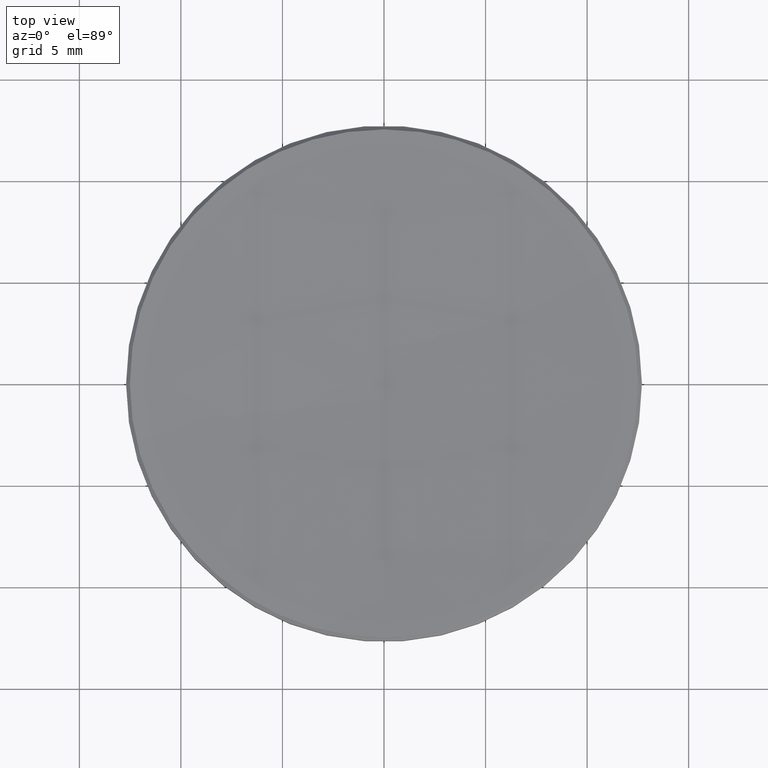
[diagram: clean part render]
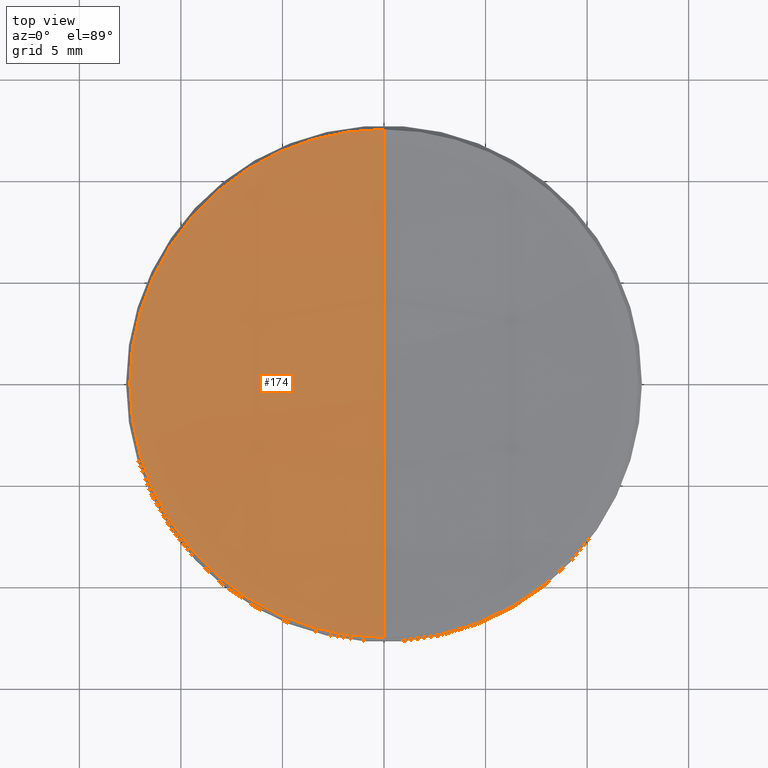
[diagram: same view with one face highlighted and labeled with its STEP entity id]
A machine part, top view. The second image highlights one B-rep face of the part: STEP entity #174.
In plain terms, the highlighted spherical surface has radius 182.19 mm.
Its self-contained STEP definition (entity closure, byte-faithful):
#5 = EDGE_CURVE ( 'NONE', #220, #319, #159, .T. ) ;
#11 = ORIENTED_EDGE ( 'NONE', *, *, #198, .F. ) ;
#19 = EDGE_LOOP ( 'NONE', ( #11, #253, #218, #90 ) ) ;
#25 = AXIS2_PLACEMENT_3D ( 'NONE', #93, #299, #273 ) ;
#33 = CARTESIAN_POINT ( 'NONE',  ( 0.000000000000000000, 1.115592001683281265E-14, 5.556818679172486952 ) ) ;
#41 = EDGE_CURVE ( 'NONE', #197, #220, #81, .T. ) ;
#48 = DIRECTION ( 'NONE',  ( -1.000000000000000000, 0.000000000000000000, 0.000000000000000000 ) ) ;
#54 = CIRCLE ( 'NONE', #96, 182.1899999999999977 ) ;
#60 = CARTESIAN_POINT ( 'NONE',  ( 0.000000000000000000, 0.000000000000000000, 187.7468186791724918 ) ) ;
#64 = DIRECTION ( 'NONE',  ( -1.000000000000000000, 1.224646799147353207E-16, 0.000000000000000000 ) ) ;
#65 = VERTEX_POINT ( 'NONE', #33 ) ;
#72 = DIRECTION ( 'NONE',  ( -0.000000000000000000, -0.000000000000000000, 1.000000000000000000 ) ) ;
#81 = CIRCLE ( 'NONE', #280, 12.51297231911478569 ) ;
#90 = ORIENTED_EDGE ( 'NONE', *, *, #5, .T. ) ;
#93 = CARTESIAN_POINT ( 'NONE',  ( 0.000000000000000000, 0.000000000000000000, 5.987027680885187664 ) ) ;
#96 = AXIS2_PLACEMENT_3D ( 'NONE', #290, #64, #265 ) ;
#100 = CARTESIAN_POINT ( 'NONE',  ( 0.000000000000000000, 0.000000000000000000, 187.7468186791724918 ) ) ;
#130 = FACE_OUTER_BOUND ( 'NONE', #19, .T. ) ;
#159 = CIRCLE ( 'NONE', #25, 12.51297231911478569 ) ;
#170 = CARTESIAN_POINT ( 'NONE',  ( -1.532397149842306047E-15, -12.51297231911454411, 5.987027680885187664 ) ) ;
#174 = ADVANCED_FACE ( 'NONE', ( #130 ), #303, .F. ) ;
#181 = AXIS2_PLACEMENT_3D ( 'NONE', #60, #315, #188 ) ;
#188 = DIRECTION ( 'NONE',  ( 0.000000000000000000, 0.000000000000000000, -1.000000000000000000 ) ) ;
#197 = VERTEX_POINT ( 'NONE', #292 ) ;
#198 = EDGE_CURVE ( 'NONE', #65, #319, #54, .T. ) ;
#209 = AXIS2_PLACEMENT_3D ( 'NONE', #100, #48, #228 ) ;
#218 = ORIENTED_EDGE ( 'NONE', *, *, #41, .T. ) ;
#220 = VERTEX_POINT ( 'NONE', #316 ) ;
#226 = CARTESIAN_POINT ( 'NONE',  ( 0.000000000000000000, 0.000000000000000000, 5.987027680885187664 ) ) ;
#228 = DIRECTION ( 'NONE',  ( 0.000000000000000000, 1.000000000000000000, 0.000000000000000000 ) ) ;
#253 = ORIENTED_EDGE ( 'NONE', *, *, #310, .T. ) ;
#265 = DIRECTION ( 'NONE',  ( -1.224646799147352961E-16, -1.000000000000000000, 0.000000000000000000 ) ) ;
#269 = DIRECTION ( 'NONE',  ( 1.000000000000000000, 0.000000000000000000, 0.000000000000000000 ) ) ;
#273 = DIRECTION ( 'NONE',  ( 1.000000000000000000, 0.000000000000000000, 0.000000000000000000 ) ) ;
#280 = AXIS2_PLACEMENT_3D ( 'NONE', #226, #72, #269 ) ;
#290 = CARTESIAN_POINT ( 'NONE',  ( 0.000000000000000000, 0.000000000000000000, 187.7468186791724918 ) ) ;
#292 = CARTESIAN_POINT ( 'NONE',  ( 0.000000000000000000, 12.51297231911454411, 5.987027680885187664 ) ) ;
#299 = DIRECTION ( 'NONE',  ( -0.000000000000000000, -0.000000000000000000, 1.000000000000000000 ) ) ;
#303 = SPHERICAL_SURFACE ( 'NONE', #209, 182.1899999999999977 ) ;
#305 = CIRCLE ( 'NONE', #181, 182.1899999999999977 ) ;
#310 = EDGE_CURVE ( 'NONE', #65, #197, #305, .T. ) ;
#315 = DIRECTION ( 'NONE',  ( 1.000000000000000000, 0.000000000000000000, 0.000000000000000000 ) ) ;
#316 = CARTESIAN_POINT ( 'NONE',  ( -12.51297231911478569, 0.000000000000000000, 5.987027680885187664 ) ) ;
#319 = VERTEX_POINT ( 'NONE', #170 ) ;